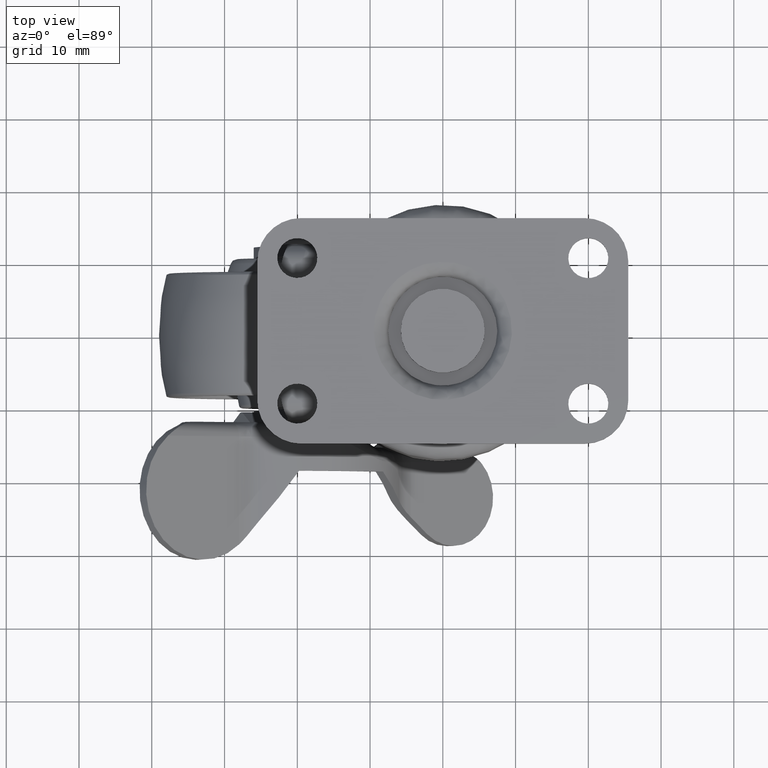
[diagram: clean part render]
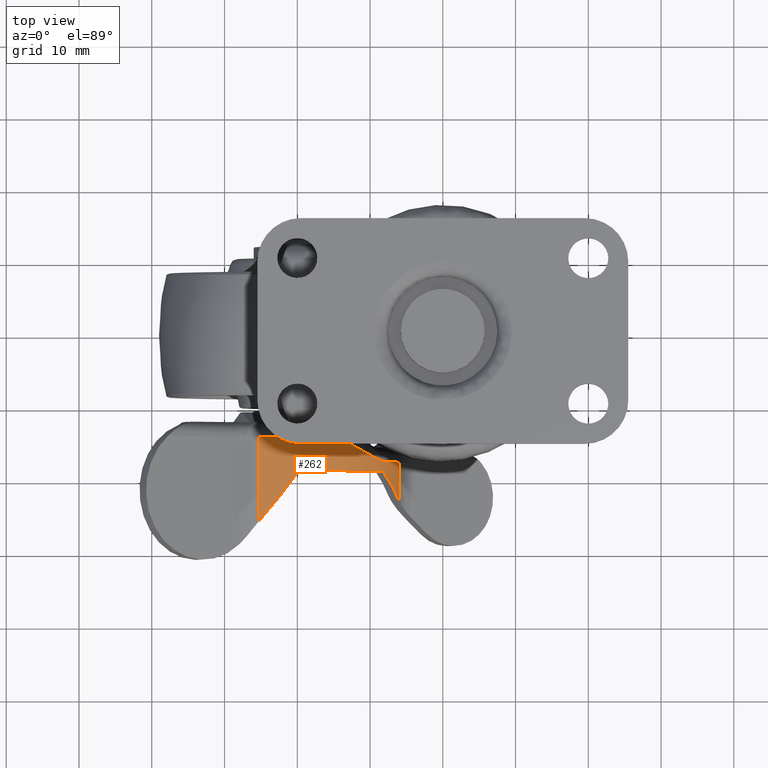
[diagram: same view with one face highlighted and labeled with its STEP entity id]
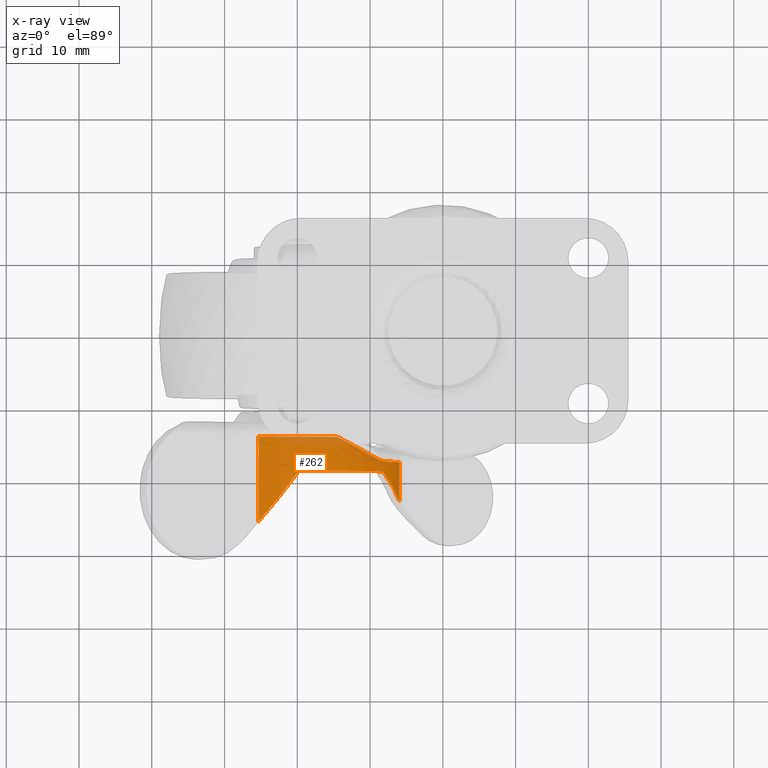
[diagram: x-ray of the same camera — body ghosted, the highlighted face saturated]
A machine part, top view. The second image highlights one B-rep face of the part: STEP entity #262.
The next image is the same camera in x-ray: the body ghosted, the highlighted face saturated — about 8% of this face is hidden behind the body in this view.
In plain terms, the highlighted cylindrical surface (partial cylindrical patch) has radius 18.0939 mm, axis along (0, 1, -0).
Its self-contained STEP definition (entity closure, byte-faithful):
#262=ADVANCED_FACE('',(#546),#545,.T.);
#545=CYLINDRICAL_SURFACE('',#3261,1.80938990000E+01);
#546=FACE_OUTER_BOUND('',#3262,.T.);
#3258=CARTESIAN_POINT('',(2.29053692581E-04,-1.99376010895E+01,-6.09389811283E+00));
#3259=DIRECTION('',(1.88986991153E-16,1.00000000000E+00,-1.76056043675E-16));
#3260=DIRECTION('',(-6.81631363802E-01,6.21721000927E-29,-7.31695759097E-01));
#3261=AXIS2_PLACEMENT_3D('',#3258,#3259,#3260);
#3262=EDGE_LOOP('',(#6686,#6687,#6688,#6689,#6690,#6691,#6692,#6693,#6694,#6695));
#6686=ORIENTED_EDGE('',*,*,#8096,.T.);
#6687=ORIENTED_EDGE('',*,*,#8097,.T.);
#6688=ORIENTED_EDGE('',*,*,#8098,.F.);
#6689=ORIENTED_EDGE('',*,*,#8099,.T.);
#6690=ORIENTED_EDGE('',*,*,#8100,.T.);
#6691=ORIENTED_EDGE('',*,*,#8101,.T.);
#6692=ORIENTED_EDGE('',*,*,#8102,.T.);
#6693=ORIENTED_EDGE('',*,*,#8103,.T.);
#6694=ORIENTED_EDGE('',*,*,#8104,.T.);
#6695=ORIENTED_EDGE('',*,*,#8105,.T.);
#8096=EDGE_CURVE('',#8861,#8862,#8863,.T.);
#8097=EDGE_CURVE('',#8862,#8869,#8870,.T.);
#8098=EDGE_CURVE('',#8876,#8869,#8877,.T.);
#8099=EDGE_CURVE('',#8876,#8883,#8884,.T.);
#8100=EDGE_CURVE('',#8883,#8890,#8891,.T.);
#8101=EDGE_CURVE('',#8890,#8897,#8898,.T.);
#8102=EDGE_CURVE('',#8897,#8904,#8905,.T.);
#8103=EDGE_CURVE('',#8904,#8911,#8912,.T.);
#8104=EDGE_CURVE('',#8911,#8918,#8919,.T.);
#8105=EDGE_CURVE('',#8918,#8861,#8925,.T.);
#8861=VERTEX_POINT('',#13532);
#8862=VERTEX_POINT('',#13533);
#8863=(BOUNDED_CURVE() B_SPLINE_CURVE(3,(#13534,#13535,#13536,#13537,#13538,#13539),.UNSPECIFIED.,.F.,.F.) B_SPLINE_CURVE_WITH_KNOTS((4,2,4),(0.00000000000E+00,5.00000000000E-01,1.00000000000E+00),.UNSPECIFIED.) CURVE() GEOMETRIC_REPRESENTATION_ITEM() RATIONAL_B_SPLINE_CURVE((1.00000000000E+00,1.00000000000E+00,1.00000000000E+00,1.00000000000E+00,1.00000000000E+00,1.00000000000E+00)) REPRESENTATION_ITEM('') );
#8869=VERTEX_POINT('',#13540);
#8870=CIRCLE('',#13544,1.80938990000E+01);
#8876=VERTEX_POINT('',#13545);
#8877=LINE('',#13546,#13547);
#8883=VERTEX_POINT('',#13549);
#8884=(BOUNDED_CURVE() B_SPLINE_CURVE(2,(#13550,#13551,#13552),.UNSPECIFIED.,.F.,.F.) B_SPLINE_CURVE_WITH_KNOTS((3,3),(0.00000000000E+00,1.00000000000E+00),.UNSPECIFIED.) CURVE() GEOMETRIC_REPRESENTATION_ITEM() RATIONAL_B_SPLINE_CURVE((1.00000000000E+00,9.88003013450E-01,1.00000000000E+00)) REPRESENTATION_ITEM('') );
#8890=VERTEX_POINT('',#13553);
#8891=CIRCLE('',#13557,1.80938990000E+01);
#8897=VERTEX_POINT('',#13558);
#8898=(BOUNDED_CURVE() B_SPLINE_CURVE(2,(#13559,#13560,#13561),.UNSPECIFIED.,.F.,.F.) B_SPLINE_CURVE_WITH_KNOTS((3,3),(0.00000000000E+00,1.00000000000E+00),.UNSPECIFIED.) CURVE() GEOMETRIC_REPRESENTATION_ITEM() RATIONAL_B_SPLINE_CURVE((1.00000000000E+00,9.88006386101E-01,1.00000000000E+00)) REPRESENTATION_ITEM('') );
#8904=VERTEX_POINT('',#13562);
#8905=LINE('',#13563,#13564);
#8911=VERTEX_POINT('',#13566);
#8912=CIRCLE('',#13570,1.80938990000E+01);
#8918=VERTEX_POINT('',#13571);
#8919=(BOUNDED_CURVE() B_SPLINE_CURVE(3,(#13572,#13573,#13574,#13575,#13576,#13577,#13578,#13579),.UNSPECIFIED.,.F.,.F.) B_SPLINE_CURVE_WITH_KNOTS((4,2,2,4),(0.00000000000E+00,5.00000000000E-01,7.50000000000E-01,1.00000000000E+00),.UNSPECIFIED.) CURVE() GEOMETRIC_REPRESENTATION_ITEM() RATIONAL_B_SPLINE_CURVE((1.00000000000E+00,1.00000000000E+00,1.00000000000E+00,1.00000000000E+00,1.00000000000E+00,1.00000000000E+00,1.00000000000E+00,1.00000000000E+00)) REPRESENTATION_ITEM('') );
#8925=(BOUNDED_CURVE() B_SPLINE_CURVE(2,(#13580,#13581,#13582),.UNSPECIFIED.,.F.,.F.) B_SPLINE_CURVE_WITH_KNOTS((3,3),(0.00000000000E+00,1.00000000000E+00),.UNSPECIFIED.) CURVE() GEOMETRIC_REPRESENTATION_ITEM() RATIONAL_B_SPLINE_CURVE((1.00000000000E+00,9.80584771715E-01,1.00000000000E+00)) REPRESENTATION_ITEM('') );
#13532=CARTESIAN_POINT('',(-1.39819300571E+00,-1.41769702051E+01,1.19458800667E+01));
#13533=CARTESIAN_POINT('',(-1.76148363623E+00,-1.41000000000E+01,1.19140320686E+01));
#13534=CARTESIAN_POINT('',(-1.39819300571E+00,-1.41769702051E+01,1.19458800667E+01));
#13535=CARTESIAN_POINT('',(-1.45541491788E+00,-1.41510840644E+01,1.19414442924E+01));
#13536=CARTESIAN_POINT('',(-1.51555267025E+00,-1.41318378586E+01,1.19365015191E+01));
#13537=CARTESIAN_POINT('',(-1.63713929827E+00,-1.41063909687E+01,1.19258668691E+01));
#13538=CARTESIAN_POINT('',(-1.69884982296E+00,-1.41000000000E+01,1.19201595237E+01));
#13539=CARTESIAN_POINT('',(-1.76148363623E+00,-1.41000000000E+01,1.19140320686E+01));
#13540=CARTESIAN_POINT('',(-1.17577169736E+01,-1.41000000000E+01,7.65891564445E+00));
#13541=CARTESIAN_POINT('',(2.29053692570E-04,-1.41000000000E+01,-6.09389811283E+00));
#13542=DIRECTION('',(-8.80094965689E-16,-1.00000000000E+00,3.95826478823E-15));
#13543=DIRECTION('',(9.73650118156E-02,-4.02514849981E-15,-9.95248740001E-01));
#13544=AXIS2_PLACEMENT_3D('',#13541,#13542,#13543);
#13545=CARTESIAN_POINT('',(-1.17577150228E+01,-2.57752012797E+01,7.65890840737E+00));
#13546=CARTESIAN_POINT('',(-1.17577150228E+01,-2.57752012797E+01,7.65890840737E+00));
#13547=VECTOR('',#13548,1.16752012797E+01);
#13548=DIRECTION('',(-1.67089196411E-07,1.00000000000E+00,6.19867685943E-07));
#13549=CARTESIAN_POINT('',(-7.00000000000E+00,-1.87639404493E+01,1.05910044706E+01));
#13550=CARTESIAN_POINT('',(-1.17577150228E+01,-2.57752012797E+01,7.65890840737E+00));
#13551=CARTESIAN_POINT('',(-9.60801455786E+00,-2.26072707512E+01,9.49679502861E+00));
#13552=CARTESIAN_POINT('',(-7.00000000000E+00,-1.87639404493E+01,1.05910044706E+01));
#13553=CARTESIAN_POINT('',(7.00000000000E+00,-1.87639404493E+01,1.05911966643E+01));
#13554=CARTESIAN_POINT('',(2.29053692571E-04,-1.87639404493E+01,-6.09389811283E+00));
#13555=DIRECTION('',(-4.14309687734E-16,1.00000000000E+00,2.38133253902E-15));
#13556=DIRECTION('',(3.86883393882E-01,2.35618448769E-15,-9.22128645872E-01));
#13557=AXIS2_PLACEMENT_3D('',#13554,#13555,#13556);
#13558=CARTESIAN_POINT('',(1.17571972900E+01,-2.27523887963E+01,7.65975369886E+00));
#13559=CARTESIAN_POINT('',(7.00000000000E+00,-1.87639404493E+01,1.05911966643E+01));
#13560=CARTESIAN_POINT('',(9.60767259185E+00,-2.09502209007E+01,9.49722015501E+00));
#13561=CARTESIAN_POINT('',(1.17571972900E+01,-2.27523887963E+01,7.65975369886E+00));
#13562=CARTESIAN_POINT('',(1.17571965334E+01,-1.74000310000E+01,7.65975219180E+00));
#13563=CARTESIAN_POINT('',(1.17571972900E+01,-2.27523887963E+01,7.65975369886E+00));
#13564=VECTOR('',#13565,5.35235779630E+00);
#13565=DIRECTION('',(-1.41358262886E-07,1.00000000000E+00,-2.81569367689E-07));
#13566=CARTESIAN_POINT('',(8.15471177424E+00,-1.74000310000E+01,1.00583027459E+01));
#13567=CARTESIAN_POINT('',(2.29053692696E-04,-1.74000310000E+01,-6.09389811283E+00));
#13568=DIRECTION('',(-1.75492578526E-16,-1.00000000000E+00,1.50015486287E-16));
#13569=DIRECTION('',(-6.49775235273E-01,-0.00000000000E+00,-7.60126399769E-01));
#13570=AXIS2_PLACEMENT_3D('',#13567,#13568,#13569);
#13571=CARTESIAN_POINT('',(5.64703605366E+00,-1.70151799745E+01,1.10962953627E+01));
#13572=CARTESIAN_POINT('',(8.15471177424E+00,-1.74000310000E+01,1.00583027459E+01));
#13573=CARTESIAN_POINT('',(7.74163473936E+00,-1.74000310000E+01,1.02668458153E+01));
#13574=CARTESIAN_POINT('',(7.32491933079E+00,-1.73750421905E+01,1.04573340063E+01));
#13575=CARTESIAN_POINT('',(6.69688709467E+00,-1.72856503121E+01,1.07166714768E+01));
#13576=CARTESIAN_POINT('',(6.48705862968E+00,-1.72471337850E+01,1.07987142921E+01));
#13577=CARTESIAN_POINT('',(6.06706837713E+00,-1.71486917774E+01,1.09540569679E+01));
#13578=CARTESIAN_POINT('',(5.85689905647E+00,-1.70888170878E+01,1.10273574607E+01));
#13579=CARTESIAN_POINT('',(5.64703605366E+00,-1.70151799745E+01,1.10962953627E+01));
#13580=CARTESIAN_POINT('',(5.64703605366E+00,-1.70151799745E+01,1.10962953627E+01));
#13581=CARTESIAN_POINT('',(2.20937076696E+00,-1.58089657078E+01,1.22255341018E+01));
#13582=CARTESIAN_POINT('',(-1.39819300571E+00,-1.41769702051E+01,1.19458800667E+01));